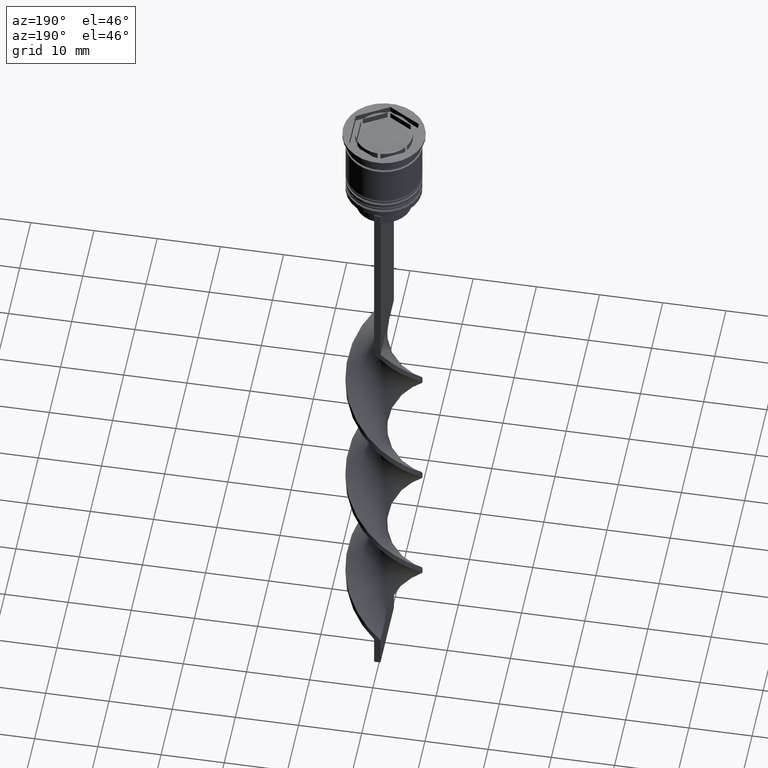
[diagram: clean part render]
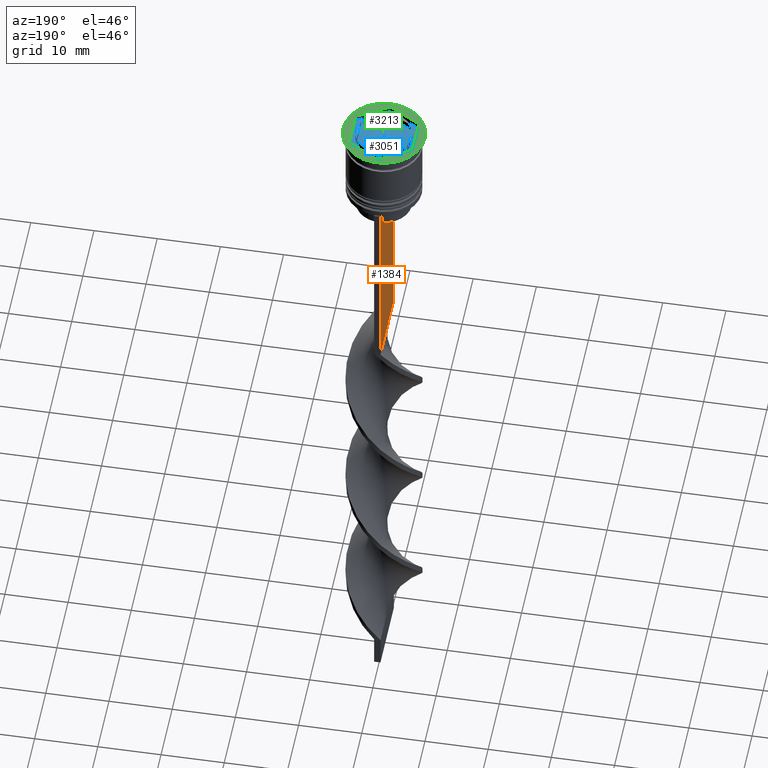
[diagram: same view with three faces highlighted in distinct colors, each labeled with its STEP entity id]
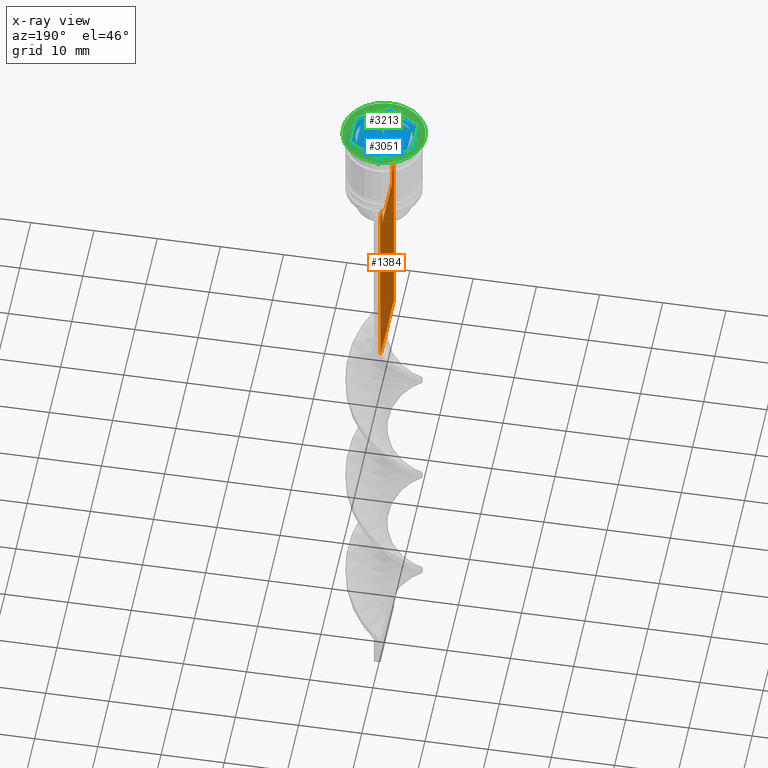
[diagram: x-ray of the same camera — body ghosted, the three highlighted faces saturated]
A machine part, auxiliary view with three faces highlighted in distinct colors.
The next image is the same camera in x-ray (body ghosted, the three faces saturated) — at least one of them is partly hidden behind the body in this view.
Their STEP definitions:

[orange] entity #1384 — the highlighted planar face has unit normal (-1, 0, 0).
#1 = ORIENTED_EDGE ( 'NONE', *, *, #142, .F. ) ;
#13 = CARTESIAN_POINT ( 'NONE',  ( -0.4999999999999997780, -4.371498598878878816, 0.000000000000000000 ) ) ;
#94 = ORIENTED_EDGE ( 'NONE', *, *, #2002, .F. ) ;
#100 = DIRECTION ( 'NONE',  ( 0.000000000000000000, 1.000000000000000000, 0.000000000000000000 ) ) ;
#139 = VECTOR ( 'NONE', #2410, 1000.000000000000000 ) ;
#142 = EDGE_CURVE ( 'NONE', #654, #655, #3115, .T. ) ;
#158 = CARTESIAN_POINT ( 'NONE',  ( -0.4999999999999997780, -4.706831372970964544, -12.66671687695981596 ) ) ;
#194 = ORIENTED_EDGE ( 'NONE', *, *, #849, .T. ) ;
#248 = CARTESIAN_POINT ( 'NONE',  ( -0.4999999999999997780, -4.371498598878878816, -13.00000000000000178 ) ) ;
#302 = CARTESIAN_POINT ( 'NONE',  ( -0.4999999999999997780, 4.371498598878878816, -13.00000000000000178 ) ) ;
#305 = VERTEX_POINT ( 'NONE', #2336 ) ;
#339 = LINE ( 'NONE', #1708, #1104 ) ;
#476 = VERTEX_POINT ( 'NONE', #3009 ) ;
#514 = CARTESIAN_POINT ( 'NONE',  ( -0.4999999999999997780, -6.000000000000000000, -12.50000000000000000 ) ) ;
#516 = VERTEX_POINT ( 'NONE', #1607 ) ;
#538 = CARTESIAN_POINT ( 'NONE',  ( -0.4999999999999997780, -6.000000000000000000, -12.50000000000000000 ) ) ;
#645 = DIRECTION ( 'NONE',  ( 0.000000000000000000, -1.000000000000000000, 0.000000000000000000 ) ) ;
#654 = VERTEX_POINT ( 'NONE', #248 ) ;
#655 = VERTEX_POINT ( 'NONE', #859 ) ;
#678 = LINE ( 'NONE', #2081, #1162 ) ;
#692 = ORIENTED_EDGE ( 'NONE', *, *, #2558, .F. ) ;
#767 = VECTOR ( 'NONE', #3162, 1000.000000000000000 ) ;
#849 = EDGE_CURVE ( 'NONE', #2516, #2413, #2773, .T. ) ;
#859 = CARTESIAN_POINT ( 'NONE',  ( -0.4999999999999997780, -4.874423042781576676, -12.50000000000000000 ) ) ;
#871 = LINE ( 'NONE', #1976, #1457 ) ;
#966 = VERTEX_POINT ( 'NONE', #1136 ) ;
#975 = LINE ( 'NONE', #3513, #139 ) ;
#1094 = ORIENTED_EDGE ( 'NONE', *, *, #3518, .F. ) ;
#1099 = DIRECTION ( 'NONE',  ( 0.000000000000000000, 0.000000000000000000, 1.000000000000000000 ) ) ;
#1102 = CARTESIAN_POINT ( 'NONE',  ( -0.4999999999999997780, 4.706831415367290106, -12.66671683478478982 ) ) ;
#1104 = VECTOR ( 'NONE', #2619, 1000.000000000000000 ) ;
#1115 = DIRECTION ( 'NONE',  ( -0.000000000000000000, -0.000000000000000000, 1.000000000000000000 ) ) ;
#1135 = DIRECTION ( 'NONE',  ( -1.000000000000000000, 0.000000000000000000, 0.000000000000000000 ) ) ;
#1136 = CARTESIAN_POINT ( 'NONE',  ( -0.4999999999999997780, -5.878775382679627626, -12.50000000000000000 ) ) ;
#1162 = VECTOR ( 'NONE', #100, 1000.000000000000000 ) ;
#1203 = CARTESIAN_POINT ( 'NONE',  ( -0.4999999999999997780, -4.874423042781576676, -12.50000000000000000 ) ) ;
#1343 = CARTESIAN_POINT ( 'NONE',  ( -0.4999999999999997780, 6.000000000000001776, -12.50000000000000000 ) ) ;
#1384 = ADVANCED_FACE ( 'NONE', ( #3593 ), #2533, .T. ) ;
#1457 = VECTOR ( 'NONE', #3098, 1000.000000000000000 ) ;
#1540 = EDGE_CURVE ( 'NONE', #655, #966, #1677, .T. ) ;
#1543 = EDGE_CURVE ( 'NONE', #2433, #2115, #871, .T. ) ;
#1607 = CARTESIAN_POINT ( 'NONE',  ( -0.4999999999999997780, -6.000000000000000000, -43.50000000000000000 ) ) ;
#1670 = EDGE_CURVE ( 'NONE', #2115, #654, #2250, .T. ) ;
#1677 = LINE ( 'NONE', #514, #1988 ) ;
#1708 = CARTESIAN_POINT ( 'NONE',  ( -0.4999999999999997780, -6.000000000000000000, -0.4584054212077061097 ) ) ;
#1714 = B_SPLINE_CURVE_WITH_KNOTS ( 'NONE', 3,
 ( #3025, #1102, #2225, #302 ),
 .UNSPECIFIED., .F., .F.,
 ( 4, 4 ),
 ( 0.008336552452178418518, 0.009045730124312837891 ),
 .UNSPECIFIED. ) ;
#1732 = CARTESIAN_POINT ( 'NONE',  ( -0.4999999999999997780, -6.000000000000000000, -12.50000000000000000 ) ) ;
#1844 = CARTESIAN_POINT ( 'NONE',  ( -0.4999999999999997780, 5.878775382679627626, -12.50000000000000000 ) ) ;
#1877 = CARTESIAN_POINT ( 'NONE',  ( -0.4999999999999997780, 4.371498598878878816, -15.50000000000000000 ) ) ;
#1895 = CARTESIAN_POINT ( 'NONE',  ( -0.4999999999999997780, 6.000000000000000888, -43.50000000000000000 ) ) ;
#1916 = CARTESIAN_POINT ( 'NONE',  ( -0.4999999999999997780, 6.000000000000000888, -0.4584054212077061097 ) ) ;
#1922 = CARTESIAN_POINT ( 'NONE',  ( -0.4999999999999997780, -6.000000000000000000, -0.4584054212077061097 ) ) ;
#1958 = DIRECTION ( 'NONE',  ( 0.000000000000000000, -1.000000000000000000, 0.000000000000000000 ) ) ;
#1968 = ORIENTED_EDGE ( 'NONE', *, *, #1543, .F. ) ;
#1976 = CARTESIAN_POINT ( 'NONE',  ( -0.4999999999999997780, 4.399999999999999467, -15.50000000000000000 ) ) ;
#1988 = VECTOR ( 'NONE', #2479, 1000.000000000000000 ) ;
#2002 = EDGE_CURVE ( 'NONE', #2516, #3022, #3130, .T. ) ;
#2062 = ORIENTED_EDGE ( 'NONE', *, *, #2849, .F. ) ;
#2064 = CARTESIAN_POINT ( 'NONE',  ( -0.4999999999999997780, 4.874423042781576676, -12.50000000000000000 ) ) ;
#2081 = CARTESIAN_POINT ( 'NONE',  ( -0.4999999999999997780, -6.000000000000000000, -43.50000000000000000 ) ) ;
#2115 = VERTEX_POINT ( 'NONE', #2606 ) ;
#2146 = VECTOR ( 'NONE', #1115, 1000.000000000000000 ) ;
#2170 = ORIENTED_EDGE ( 'NONE', *, *, #1670, .F. ) ;
#2194 = DIRECTION ( 'NONE',  ( 0.000000000000000000, 0.000000000000000000, -1.000000000000000000 ) ) ;
#2225 = CARTESIAN_POINT ( 'NONE',  ( -0.4999999999999997780, 4.539195634199897356, -12.83338923751318816 ) ) ;
#2250 = LINE ( 'NONE', #13, #2146 ) ;
#2335 = VECTOR ( 'NONE', #2194, 1000.000000000000000 ) ;
#2336 = CARTESIAN_POINT ( 'NONE',  ( -0.4999999999999997780, 4.371498598878878816, -13.00000000000000178 ) ) ;
#2410 = DIRECTION ( 'NONE',  ( 0.000000000000000000, -1.000000000000000000, 0.000000000000000000 ) ) ;
#2413 = VERTEX_POINT ( 'NONE', #1895 ) ;
#2433 = VERTEX_POINT ( 'NONE', #1877 ) ;
#2479 = DIRECTION ( 'NONE',  ( 0.000000000000000000, -1.000000000000000000, 0.000000000000000000 ) ) ;
#2513 = LINE ( 'NONE', #538, #3155 ) ;
#2516 = VERTEX_POINT ( 'NONE', #1343 ) ;
#2533 = PLANE ( 'NONE',  #2924 ) ;
#2557 = LINE ( 'NONE', #2829, #767 ) ;
#2558 = EDGE_CURVE ( 'NONE', #516, #2413, #678, .T. ) ;
#2584 = EDGE_CURVE ( 'NONE', #476, #516, #339, .T. ) ;
#2587 = EDGE_CURVE ( 'NONE', #305, #2433, #2557, .T. ) ;
#2592 = VERTEX_POINT ( 'NONE', #2064 ) ;
#2606 = CARTESIAN_POINT ( 'NONE',  ( -0.4999999999999997780, -4.371498598878878816, -15.50000000000000000 ) ) ;
#2619 = DIRECTION ( 'NONE',  ( 0.000000000000000000, 0.000000000000000000, -1.000000000000000000 ) ) ;
#2640 = EDGE_LOOP ( 'NONE', ( #2062, #3016, #94, #194, #692, #2952, #1094, #2732, #1, #2170, #1968, #3328 ) ) ;
#2732 = ORIENTED_EDGE ( 'NONE', *, *, #1540, .F. ) ;
#2773 = LINE ( 'NONE', #1916, #2335 ) ;
#2798 = VECTOR ( 'NONE', #645, 1000.000000000000000 ) ;
#2829 = CARTESIAN_POINT ( 'NONE',  ( -0.4999999999999997780, 4.371498598878878816, 0.000000000000000000 ) ) ;
#2849 = EDGE_CURVE ( 'NONE', #2592, #305, #1714, .T. ) ;
#2924 = AXIS2_PLACEMENT_3D ( 'NONE', #1922, #1135, #1099 ) ;
#2928 = CARTESIAN_POINT ( 'NONE',  ( -0.4999999999999997780, -4.371498598878878816, -13.00000000000000178 ) ) ;
#2946 = CARTESIAN_POINT ( 'NONE',  ( -0.4999999999999997780, -4.539195586926424220, -12.83338928448044136 ) ) ;
#2952 = ORIENTED_EDGE ( 'NONE', *, *, #2584, .F. ) ;
#3009 = CARTESIAN_POINT ( 'NONE',  ( -0.4999999999999997780, -6.000000000000000000, -12.50000000000000000 ) ) ;
#3016 = ORIENTED_EDGE ( 'NONE', *, *, #3205, .F. ) ;
#3022 = VERTEX_POINT ( 'NONE', #1844 ) ;
#3025 = CARTESIAN_POINT ( 'NONE',  ( -0.4999999999999997780, 4.874423042781576676, -12.50000000000000000 ) ) ;
#3098 = DIRECTION ( 'NONE',  ( 0.000000000000000000, -1.000000000000000000, 0.000000000000000000 ) ) ;
#3115 = B_SPLINE_CURVE_WITH_KNOTS ( 'NONE', 3,
 ( #2928, #2946, #158, #1203 ),
 .UNSPECIFIED., .F., .F.,
 ( 4, 4 ),
 ( 0.02089901220910806920, 0.02161421017310284978 ),
 .UNSPECIFIED. ) ;
#3130 = LINE ( 'NONE', #1732, #2798 ) ;
#3155 = VECTOR ( 'NONE', #1958, 1000.000000000000000 ) ;
#3162 = DIRECTION ( 'NONE',  ( 0.000000000000000000, 0.000000000000000000, -1.000000000000000000 ) ) ;
#3205 = EDGE_CURVE ( 'NONE', #3022, #2592, #2513, .T. ) ;
#3328 = ORIENTED_EDGE ( 'NONE', *, *, #2587, .F. ) ;
#3513 = CARTESIAN_POINT ( 'NONE',  ( -0.4999999999999997780, -6.000000000000000000, -12.50000000000000000 ) ) ;
#3518 = EDGE_CURVE ( 'NONE', #966, #476, #975, .T. ) ;
#3593 = FACE_OUTER_BOUND ( 'NONE', #2640, .T. ) ;

[blue] entity #3051 — the highlighted planar face has unit normal (0, 0, 1).
#14 = ORIENTED_EDGE ( 'NONE', *, *, #1902, .F. ) ;
#20 = DIRECTION ( 'NONE',  ( 1.000000000000000000, 0.000000000000000000, 0.000000000000000000 ) ) ;
#40 = ORIENTED_EDGE ( 'NONE', *, *, #1214, .T. ) ;
#86 = CARTESIAN_POINT ( 'NONE',  ( -0.2146428928642867551, 4.494878021542170643, -1.000000000000000888 ) ) ;
#90 = CARTESIAN_POINT ( 'NONE',  ( 0.000000000000000000, 0.000000000000000000, -1.000000000000000000 ) ) ;
#105 = CARTESIAN_POINT ( 'NONE',  ( 0.000000000000000000, 5.773502691896257311, -1.000000000000000000 ) ) ;
#115 = ORIENTED_EDGE ( 'NONE', *, *, #2914, .T. ) ;
#136 = ORIENTED_EDGE ( 'NONE', *, *, #2371, .F. ) ;
#153 = EDGE_CURVE ( 'NONE', #1961, #2355, #762, .T. ) ;
#161 = CARTESIAN_POINT ( 'NONE',  ( 5.612359739892467248E-18, -5.773502691896257311, -1.000000000000000000 ) ) ;
#205 = LINE ( 'NONE', #161, #2221 ) ;
#214 = CARTESIAN_POINT ( 'NONE',  ( -0.2146428928642871992, -4.494878021542169755, -1.000000000000000888 ) ) ;
#216 = LINE ( 'NONE', #3528, #1622 ) ;
#220 = ORIENTED_EDGE ( 'NONE', *, *, #153, .F. ) ;
#230 = EDGE_CURVE ( 'NONE', #1711, #1298, #2569, .T. ) ;
#257 = DIRECTION ( 'NONE',  ( -0.8660254037844387076, -0.4999999999999998890, 0.000000000000000000 ) ) ;
#268 = CARTESIAN_POINT ( 'NONE',  ( 3.999999999999999112, -2.309401076758503812, -1.000000000000000888 ) ) ;
#276 = EDGE_LOOP ( 'NONE', ( #2155, #1277 ) ) ;
#292 = VECTOR ( 'NONE', #907, 1000.000000000000114 ) ;
#318 = LINE ( 'NONE', #3449, #2753 ) ;
#323 = DIRECTION ( 'NONE',  ( 0.000000000000000000, 0.000000000000000000, 1.000000000000000000 ) ) ;
#324 = DIRECTION ( 'NONE',  ( 0.8660254037844387076, -0.4999999999999998335, 0.000000000000000000 ) ) ;
#333 = ORIENTED_EDGE ( 'NONE', *, *, #610, .T. ) ;
#338 = EDGE_LOOP ( 'NONE', ( #732, #14 ) ) ;
#348 = DIRECTION ( 'NONE',  ( 0.000000000000000000, 0.000000000000000000, 1.000000000000000000 ) ) ;
#349 = AXIS2_PLACEMENT_3D ( 'NONE', #2443, #3561, #2740 ) ;
#382 = DIRECTION ( 'NONE',  ( -0.8660254037844384856, 0.5000000000000001110, 0.000000000000000000 ) ) ;
#452 = EDGE_CURVE ( 'NONE', #1298, #1711, #3050, .T. ) ;
#459 = AXIS2_PLACEMENT_3D ( 'NONE', #2085, #2320, #1256 ) ;
#460 = CARTESIAN_POINT ( 'NONE',  ( 0.2146428928642876155, -4.494878021542170643, -1.000000000000000888 ) ) ;
#467 = VECTOR ( 'NONE', #257, 1000.000000000000114 ) ;
#513 = FACE_BOUND ( 'NONE', #2299, .T. ) ;
#540 = VERTEX_POINT ( 'NONE', #214 ) ;
#544 = EDGE_CURVE ( 'NONE', #613, #1247, #1919, .T. ) ;
#576 = CARTESIAN_POINT ( 'NONE',  ( -5.000000000000000888, -2.886751345948129543, -1.000000000000000000 ) ) ;
#610 = EDGE_CURVE ( 'NONE', #1262, #2222, #205, .T. ) ;
#613 = VERTEX_POINT ( 'NONE', #1962 ) ;
#619 = LINE ( 'NONE', #3436, #2386 ) ;
#643 = AXIS2_PLACEMENT_3D ( 'NONE', #2478, #2196, #20 ) ;
#680 = CARTESIAN_POINT ( 'NONE',  ( -5.000000000000000888, 2.886751345948128655, -1.000000000000000000 ) ) ;
#702 = CIRCLE ( 'NONE', #2855, 4.500000000000000888 ) ;
#703 = CARTESIAN_POINT ( 'NONE',  ( 4.336808689942017736E-16, 4.618802153517006737, -1.000000000000000888 ) ) ;
#732 = ORIENTED_EDGE ( 'NONE', *, *, #544, .F. ) ;
#736 = EDGE_CURVE ( 'NONE', #2192, #3040, #3388, .T. ) ;
#754 = VERTEX_POINT ( 'NONE', #899 ) ;
#762 = CIRCLE ( 'NONE', #459, 4.500000000000000888 ) ;
#884 = CARTESIAN_POINT ( 'NONE',  ( 3.999999999999999112, -2.061552812808833846, -1.000000000000000888 ) ) ;
#899 = CARTESIAN_POINT ( 'NONE',  ( -4.000000000000000000, 2.061552812808831625, -1.000000000000000888 ) ) ;
#907 = DIRECTION ( 'NONE',  ( -0.8660254037844387076, 0.4999999999999997224, 0.000000000000000000 ) ) ;
#924 = ORIENTED_EDGE ( 'NONE', *, *, #1315, .T. ) ;
#1027 = VERTEX_POINT ( 'NONE', #1665 ) ;
#1046 = CARTESIAN_POINT ( 'NONE',  ( 0.000000000000000000, 0.000000000000000000, -1.000000000000000000 ) ) ;
#1052 = CIRCLE ( 'NONE', #643, 4.500000000000000888 ) ;
#1107 = DIRECTION ( 'NONE',  ( -1.877893248421448296E-16, -1.000000000000000000, 0.000000000000000000 ) ) ;
#1113 = LINE ( 'NONE', #2769, #467 ) ;
#1144 = CARTESIAN_POINT ( 'NONE',  ( -3.785357107135713939, -2.433325208733338130, -1.000000000000000888 ) ) ;
#1172 = VECTOR ( 'NONE', #1809, 1000.000000000000114 ) ;
#1204 = CARTESIAN_POINT ( 'NONE',  ( 5.000000000000000000, -2.886751345948128655, -1.000000000000000000 ) ) ;
#1214 = EDGE_CURVE ( 'NONE', #1814, #1261, #1113, .T. ) ;
#1247 = VERTEX_POINT ( 'NONE', #3251 ) ;
#1256 = DIRECTION ( 'NONE',  ( 1.000000000000000000, 0.000000000000000000, 0.000000000000000000 ) ) ;
#1261 = VERTEX_POINT ( 'NONE', #680 ) ;
#1262 = VERTEX_POINT ( 'NONE', #2083 ) ;
#1277 = ORIENTED_EDGE ( 'NONE', *, *, #3459, .F. ) ;
#1298 = VERTEX_POINT ( 'NONE', #1932 ) ;
#1315 = EDGE_CURVE ( 'NONE', #1027, #1262, #1723, .T. ) ;
#1350 = FACE_OUTER_BOUND ( 'NONE', #3001, .T. ) ;
#1434 = DIRECTION ( 'NONE',  ( -0.8660254037844387076, -0.4999999999999998890, 0.000000000000000000 ) ) ;
#1453 = VECTOR ( 'NONE', #382, 1000.000000000000227 ) ;
#1494 = CARTESIAN_POINT ( 'NONE',  ( 0.000000000000000000, 0.000000000000000000, -1.000000000000000000 ) ) ;
#1504 = CARTESIAN_POINT ( 'NONE',  ( -4.500000000000000888, 0.000000000000000000, -1.000000000000000000 ) ) ;
#1533 = LINE ( 'NONE', #2092, #1627 ) ;
#1575 = DIRECTION ( 'NONE',  ( 1.000000000000000000, 0.000000000000000000, 0.000000000000000000 ) ) ;
#1619 = DIRECTION ( 'NONE',  ( 0.000000000000000000, 0.000000000000000000, 1.000000000000000000 ) ) ;
#1622 = VECTOR ( 'NONE', #2258, 1000.000000000000000 ) ;
#1627 = VECTOR ( 'NONE', #2666, 1000.000000000000000 ) ;
#1646 = PLANE ( 'NONE',  #2220 ) ;
#1665 = CARTESIAN_POINT ( 'NONE',  ( -5.000000000000000888, -2.886751345948129543, -1.000000000000000000 ) ) ;
#1691 = DIRECTION ( 'NONE',  ( 1.000000000000000000, 0.000000000000000000, 0.000000000000000000 ) ) ;
#1698 = DIRECTION ( 'NONE',  ( 1.000000000000000000, 0.000000000000000000, 0.000000000000000000 ) ) ;
#1705 = EDGE_CURVE ( 'NONE', #754, #1961, #702, .T. ) ;
#1711 = VERTEX_POINT ( 'NONE', #884 ) ;
#1720 = VERTEX_POINT ( 'NONE', #86 ) ;
#1723 = LINE ( 'NONE', #576, #1807 ) ;
#1764 = CARTESIAN_POINT ( 'NONE',  ( -4.000000000000000000, -2.309401076758503368, -1.000000000000000888 ) ) ;
#1807 = VECTOR ( 'NONE', #3344, 1000.000000000000114 ) ;
#1809 = DIRECTION ( 'NONE',  ( 0.8660254037844385966, 0.5000000000000001110, -0.000000000000000000 ) ) ;
#1814 = VERTEX_POINT ( 'NONE', #105 ) ;
#1886 = FACE_BOUND ( 'NONE', #3397, .T. ) ;
#1894 = VERTEX_POINT ( 'NONE', #1144 ) ;
#1902 = EDGE_CURVE ( 'NONE', #1247, #613, #619, .T. ) ;
#1917 = ORIENTED_EDGE ( 'NONE', *, *, #452, .F. ) ;
#1919 = CIRCLE ( 'NONE', #349, 4.500000000000000888 ) ;
#1932 = CARTESIAN_POINT ( 'NONE',  ( 3.999999999999999112, 2.061552812808832513, -1.000000000000000888 ) ) ;
#1961 = VERTEX_POINT ( 'NONE', #1504 ) ;
#1962 = CARTESIAN_POINT ( 'NONE',  ( 3.785357107135712162, 2.433325208733341238, -1.000000000000000888 ) ) ;
#1986 = ORIENTED_EDGE ( 'NONE', *, *, #736, .F. ) ;
#2043 = LINE ( 'NONE', #1764, #1453 ) ;
#2083 = CARTESIAN_POINT ( 'NONE',  ( 5.612359739892467248E-18, -5.773502691896257311, -1.000000000000000000 ) ) ;
#2085 = CARTESIAN_POINT ( 'NONE',  ( 0.000000000000000000, 0.000000000000000000, -1.000000000000000000 ) ) ;
#2092 = CARTESIAN_POINT ( 'NONE',  ( -5.000000000000000888, 2.886751345948128655, -1.000000000000000000 ) ) ;
#2119 = EDGE_LOOP ( 'NONE', ( #2404, #1986 ) ) ;
#2155 = ORIENTED_EDGE ( 'NONE', *, *, #3299, .F. ) ;
#2192 = VERTEX_POINT ( 'NONE', #3464 ) ;
#2196 = DIRECTION ( 'NONE',  ( 0.000000000000000000, 0.000000000000000000, 1.000000000000000000 ) ) ;
#2204 = VERTEX_POINT ( 'NONE', #3238 ) ;
#2220 = AXIS2_PLACEMENT_3D ( 'NONE', #1046, #1619, #3004 ) ;
#2221 = VECTOR ( 'NONE', #2949, 1000.000000000000227 ) ;
#2222 = VERTEX_POINT ( 'NONE', #1204 ) ;
#2256 = DIRECTION ( 'NONE',  ( 0.000000000000000000, 1.000000000000000000, 0.000000000000000000 ) ) ;
#2258 = DIRECTION ( 'NONE',  ( 1.502314598737159278E-16, 1.000000000000000000, 0.000000000000000000 ) ) ;
#2299 = EDGE_LOOP ( 'NONE', ( #3220, #1917 ) ) ;
#2304 = DIRECTION ( 'NONE',  ( 0.000000000000000000, 0.000000000000000000, 1.000000000000000000 ) ) ;
#2320 = DIRECTION ( 'NONE',  ( 0.000000000000000000, 0.000000000000000000, 1.000000000000000000 ) ) ;
#2334 = CARTESIAN_POINT ( 'NONE',  ( 5.000000000000000888, 2.886751345948129543, -1.000000000000000000 ) ) ;
#2355 = VERTEX_POINT ( 'NONE', #2409 ) ;
#2360 = EDGE_CURVE ( 'NONE', #2222, #2722, #216, .T. ) ;
#2371 = EDGE_CURVE ( 'NONE', #1894, #540, #2387, .T. ) ;
#2386 = VECTOR ( 'NONE', #324, 1000.000000000000114 ) ;
#2387 = CIRCLE ( 'NONE', #2801, 4.500000000000000888 ) ;
#2404 = ORIENTED_EDGE ( 'NONE', *, *, #3122, .F. ) ;
#2409 = CARTESIAN_POINT ( 'NONE',  ( -4.000000000000000000, -2.061552812808831625, -1.000000000000000888 ) ) ;
#2416 = FACE_BOUND ( 'NONE', #338, .T. ) ;
#2419 = ORIENTED_EDGE ( 'NONE', *, *, #1705, .F. ) ;
#2428 = DIRECTION ( 'NONE',  ( 0.000000000000000000, 0.000000000000000000, 1.000000000000000000 ) ) ;
#2436 = FACE_BOUND ( 'NONE', #2119, .T. ) ;
#2443 = CARTESIAN_POINT ( 'NONE',  ( 0.000000000000000000, 0.000000000000000000, -1.000000000000000000 ) ) ;
#2452 = VECTOR ( 'NONE', #1434, 1000.000000000000114 ) ;
#2478 = CARTESIAN_POINT ( 'NONE',  ( 0.000000000000000000, 0.000000000000000000, -1.000000000000000000 ) ) ;
#2569 = CIRCLE ( 'NONE', #3267, 4.500000000000000888 ) ;
#2582 = CIRCLE ( 'NONE', #2694, 4.500000000000000888 ) ;
#2647 = LINE ( 'NONE', #703, #1172 ) ;
#2666 = DIRECTION ( 'NONE',  ( 0.000000000000000000, -1.000000000000000000, 0.000000000000000000 ) ) ;
#2694 = AXIS2_PLACEMENT_3D ( 'NONE', #90, #2304, #1698 ) ;
#2715 = EDGE_CURVE ( 'NONE', #540, #1894, #2043, .T. ) ;
#2722 = VERTEX_POINT ( 'NONE', #2334 ) ;
#2740 = DIRECTION ( 'NONE',  ( 1.000000000000000000, 0.000000000000000000, 0.000000000000000000 ) ) ;
#2753 = VECTOR ( 'NONE', #2256, 1000.000000000000000 ) ;
#2769 = CARTESIAN_POINT ( 'NONE',  ( 0.000000000000000000, 5.773502691896257311, -1.000000000000000000 ) ) ;
#2801 = AXIS2_PLACEMENT_3D ( 'NONE', #3360, #2428, #1575 ) ;
#2836 = CARTESIAN_POINT ( 'NONE',  ( -8.673617379884035472E-16, -4.618802153517006737, -1.000000000000000888 ) ) ;
#2855 = AXIS2_PLACEMENT_3D ( 'NONE', #1494, #348, #3382 ) ;
#2909 = EDGE_CURVE ( 'NONE', #2355, #754, #318, .T. ) ;
#2914 = EDGE_CURVE ( 'NONE', #2722, #1814, #3105, .T. ) ;
#2916 = EDGE_LOOP ( 'NONE', ( #2419, #3143, #220 ) ) ;
#2949 = DIRECTION ( 'NONE',  ( 0.8660254037844385966, 0.4999999999999998890, 0.000000000000000000 ) ) ;
#3000 = EDGE_CURVE ( 'NONE', #1261, #1027, #1533, .T. ) ;
#3001 = EDGE_LOOP ( 'NONE', ( #115, #40, #3565, #924, #333, #3254 ) ) ;
#3002 = ORIENTED_EDGE ( 'NONE', *, *, #2715, .F. ) ;
#3004 = DIRECTION ( 'NONE',  ( 1.000000000000000000, 0.000000000000000000, -0.000000000000000000 ) ) ;
#3040 = VERTEX_POINT ( 'NONE', #460 ) ;
#3042 = FACE_BOUND ( 'NONE', #276, .T. ) ;
#3050 = LINE ( 'NONE', #268, #3502 ) ;
#3051 = ADVANCED_FACE ( 'NONE', ( #2416, #513, #2436, #1886, #3550, #3042, #1350 ), #1646, .T. ) ;
#3086 = CARTESIAN_POINT ( 'NONE',  ( 0.000000000000000000, 0.000000000000000000, -1.000000000000000000 ) ) ;
#3105 = LINE ( 'NONE', #3371, #292 ) ;
#3122 = EDGE_CURVE ( 'NONE', #3040, #2192, #1052, .T. ) ;
#3143 = ORIENTED_EDGE ( 'NONE', *, *, #2909, .F. ) ;
#3220 = ORIENTED_EDGE ( 'NONE', *, *, #230, .F. ) ;
#3238 = CARTESIAN_POINT ( 'NONE',  ( -3.785357107135713939, 2.433325208733339018, -1.000000000000000888 ) ) ;
#3251 = CARTESIAN_POINT ( 'NONE',  ( 0.2146428928642876155, 4.494878021542170643, -1.000000000000000888 ) ) ;
#3254 = ORIENTED_EDGE ( 'NONE', *, *, #2360, .T. ) ;
#3267 = AXIS2_PLACEMENT_3D ( 'NONE', #3086, #323, #1691 ) ;
#3299 = EDGE_CURVE ( 'NONE', #1720, #2204, #2582, .T. ) ;
#3344 = DIRECTION ( 'NONE',  ( 0.8660254037844387076, -0.4999999999999997224, 0.000000000000000000 ) ) ;
#3360 = CARTESIAN_POINT ( 'NONE',  ( 0.000000000000000000, 0.000000000000000000, -1.000000000000000000 ) ) ;
#3371 = CARTESIAN_POINT ( 'NONE',  ( 5.000000000000000888, 2.886751345948129543, -1.000000000000000000 ) ) ;
#3382 = DIRECTION ( 'NONE',  ( 1.000000000000000000, 0.000000000000000000, 0.000000000000000000 ) ) ;
#3388 = LINE ( 'NONE', #2836, #2452 ) ;
#3397 = EDGE_LOOP ( 'NONE', ( #136, #3002 ) ) ;
#3436 = CARTESIAN_POINT ( 'NONE',  ( 4.000000000000000000, 2.309401076758504257, -1.000000000000000888 ) ) ;
#3449 = CARTESIAN_POINT ( 'NONE',  ( -4.000000000000000000, 2.309401076758502924, -1.000000000000000888 ) ) ;
#3459 = EDGE_CURVE ( 'NONE', #2204, #1720, #2647, .T. ) ;
#3464 = CARTESIAN_POINT ( 'NONE',  ( 3.785357107135712162, -2.433325208733341238, -1.000000000000000888 ) ) ;
#3502 = VECTOR ( 'NONE', #1107, 1000.000000000000000 ) ;
#3528 = CARTESIAN_POINT ( 'NONE',  ( 5.000000000000000000, -2.886751345948128655, -1.000000000000000000 ) ) ;
#3550 = FACE_BOUND ( 'NONE', #2916, .T. ) ;
#3561 = DIRECTION ( 'NONE',  ( 0.000000000000000000, 0.000000000000000000, 1.000000000000000000 ) ) ;
#3565 = ORIENTED_EDGE ( 'NONE', *, *, #3000, .T. ) ;

[green] entity #3213 — the highlighted planar face has unit normal (0, -0, 1).
#44 = DIRECTION ( 'NONE',  ( 1.502314598737159278E-16, 1.000000000000000000, 0.000000000000000000 ) ) ;
#59 = CARTESIAN_POINT ( 'NONE',  ( 5.612359739892467248E-18, -5.773502691896257311, 0.000000000000000000 ) ) ;
#117 = CARTESIAN_POINT ( 'NONE',  ( -5.000000000000000888, 2.886751345948128655, 0.000000000000000000 ) ) ;
#237 = EDGE_CURVE ( 'NONE', #2047, #2934, #1426, .T. ) ;
#263 = FACE_BOUND ( 'NONE', #3335, .T. ) ;
#303 = EDGE_CURVE ( 'NONE', #2883, #1116, #2507, .T. ) ;
#340 = DIRECTION ( 'NONE',  ( -0.000000000000000000, -0.000000000000000000, 1.000000000000000000 ) ) ;
#502 = EDGE_CURVE ( 'NONE', #2634, #3178, #1089, .T. ) ;
#503 = DIRECTION ( 'NONE',  ( 0.000000000000000000, -1.000000000000000000, 0.000000000000000000 ) ) ;
#527 = AXIS2_PLACEMENT_3D ( 'NONE', #2528, #3298, #1132 ) ;
#573 = CARTESIAN_POINT ( 'NONE',  ( -5.000000000000000888, -2.886751345948129543, 0.000000000000000000 ) ) ;
#633 = DIRECTION ( 'NONE',  ( 1.000000000000000000, 0.000000000000000000, 0.000000000000000000 ) ) ;
#641 = VECTOR ( 'NONE', #3110, 1000.000000000000227 ) ;
#695 = LINE ( 'NONE', #1252, #824 ) ;
#709 = VECTOR ( 'NONE', #2072, 1000.000000000000114 ) ;
#795 = EDGE_CURVE ( 'NONE', #2717, #2555, #3017, .T. ) ;
#824 = VECTOR ( 'NONE', #1183, 1000.000000000000114 ) ;
#836 = DIRECTION ( 'NONE',  ( 0.000000000000000000, -0.000000000000000000, 1.000000000000000000 ) ) ;
#866 = EDGE_CURVE ( 'NONE', #2555, #2634, #695, .T. ) ;
#934 = AXIS2_PLACEMENT_3D ( 'NONE', #2886, #340, #633 ) ;
#952 = CARTESIAN_POINT ( 'NONE',  ( 0.000000000000000000, 5.773502691896257311, 0.000000000000000000 ) ) ;
#1089 = LINE ( 'NONE', #2423, #1559 ) ;
#1116 = VERTEX_POINT ( 'NONE', #1548 ) ;
#1132 = DIRECTION ( 'NONE',  ( 1.000000000000000000, 0.000000000000000000, 0.000000000000000000 ) ) ;
#1183 = DIRECTION ( 'NONE',  ( -0.8660254037844387076, -0.4999999999999998890, 0.000000000000000000 ) ) ;
#1209 = CARTESIAN_POINT ( 'NONE',  ( 5.000000000000000000, -2.886751345948128655, 0.000000000000000000 ) ) ;
#1252 = CARTESIAN_POINT ( 'NONE',  ( 0.000000000000000000, 5.773502691896257311, 0.000000000000000000 ) ) ;
#1352 = EDGE_LOOP ( 'NONE', ( #3604, #2427 ) ) ;
#1368 = FACE_OUTER_BOUND ( 'NONE', #1352, .T. ) ;
#1391 = VECTOR ( 'NONE', #1596, 1000.000000000000114 ) ;
#1417 = DIRECTION ( 'NONE',  ( 1.000000000000000000, 0.000000000000000000, 0.000000000000000000 ) ) ;
#1426 = LINE ( 'NONE', #59, #641 ) ;
#1489 = CARTESIAN_POINT ( 'NONE',  ( 5.000000000000000888, 2.886751345948129543, 0.000000000000000000 ) ) ;
#1548 = CARTESIAN_POINT ( 'NONE',  ( 6.500000000000000000, 0.000000000000000000, 0.000000000000000000 ) ) ;
#1559 = VECTOR ( 'NONE', #503, 1000.000000000000000 ) ;
#1566 = AXIS2_PLACEMENT_3D ( 'NONE', #2494, #836, #1417 ) ;
#1596 = DIRECTION ( 'NONE',  ( -0.8660254037844387076, 0.4999999999999997224, 0.000000000000000000 ) ) ;
#1598 = EDGE_CURVE ( 'NONE', #1116, #2883, #2101, .T. ) ;
#1787 = LINE ( 'NONE', #2395, #709 ) ;
#1799 = VECTOR ( 'NONE', #44, 1000.000000000000000 ) ;
#1818 = EDGE_CURVE ( 'NONE', #2934, #2717, #2871, .T. ) ;
#1853 = ORIENTED_EDGE ( 'NONE', *, *, #237, .F. ) ;
#2047 = VERTEX_POINT ( 'NONE', #3075 ) ;
#2072 = DIRECTION ( 'NONE',  ( 0.8660254037844387076, -0.4999999999999997224, 0.000000000000000000 ) ) ;
#2101 = CIRCLE ( 'NONE', #527, 6.500000000000000000 ) ;
#2259 = EDGE_CURVE ( 'NONE', #3178, #2047, #1787, .T. ) ;
#2395 = CARTESIAN_POINT ( 'NONE',  ( -5.000000000000000888, -2.886751345948129543, 0.000000000000000000 ) ) ;
#2414 = CARTESIAN_POINT ( 'NONE',  ( 5.000000000000000888, 2.886751345948129543, 0.000000000000000000 ) ) ;
#2423 = CARTESIAN_POINT ( 'NONE',  ( -5.000000000000000888, 2.886751345948128655, 0.000000000000000000 ) ) ;
#2427 = ORIENTED_EDGE ( 'NONE', *, *, #303, .T. ) ;
#2494 = CARTESIAN_POINT ( 'NONE',  ( 0.000000000000000000, 0.000000000000000000, 0.000000000000000000 ) ) ;
#2507 = CIRCLE ( 'NONE', #934, 6.500000000000000000 ) ;
#2528 = CARTESIAN_POINT ( 'NONE',  ( 0.000000000000000000, 0.000000000000000000, 0.000000000000000000 ) ) ;
#2537 = CARTESIAN_POINT ( 'NONE',  ( -6.500000000000000000, 7.960204194457795477E-16, 0.000000000000000000 ) ) ;
#2555 = VERTEX_POINT ( 'NONE', #952 ) ;
#2631 = ORIENTED_EDGE ( 'NONE', *, *, #866, .F. ) ;
#2634 = VERTEX_POINT ( 'NONE', #117 ) ;
#2717 = VERTEX_POINT ( 'NONE', #1489 ) ;
#2719 = ORIENTED_EDGE ( 'NONE', *, *, #2259, .F. ) ;
#2815 = CARTESIAN_POINT ( 'NONE',  ( 5.000000000000000000, -2.886751345948128655, 0.000000000000000000 ) ) ;
#2871 = LINE ( 'NONE', #2815, #1799 ) ;
#2883 = VERTEX_POINT ( 'NONE', #2537 ) ;
#2886 = CARTESIAN_POINT ( 'NONE',  ( 0.000000000000000000, 0.000000000000000000, 0.000000000000000000 ) ) ;
#2934 = VERTEX_POINT ( 'NONE', #1209 ) ;
#3017 = LINE ( 'NONE', #2414, #1391 ) ;
#3075 = CARTESIAN_POINT ( 'NONE',  ( 5.612359739892467248E-18, -5.773502691896257311, 0.000000000000000000 ) ) ;
#3076 = PLANE ( 'NONE',  #1566 ) ;
#3110 = DIRECTION ( 'NONE',  ( 0.8660254037844385966, 0.4999999999999998890, 0.000000000000000000 ) ) ;
#3178 = VERTEX_POINT ( 'NONE', #573 ) ;
#3213 = ADVANCED_FACE ( 'NONE', ( #263, #1368 ), #3076, .T. ) ;
#3253 = ORIENTED_EDGE ( 'NONE', *, *, #795, .F. ) ;
#3298 = DIRECTION ( 'NONE',  ( -0.000000000000000000, -0.000000000000000000, 1.000000000000000000 ) ) ;
#3335 = EDGE_LOOP ( 'NONE', ( #3253, #3432, #1853, #2719, #3581, #2631 ) ) ;
#3432 = ORIENTED_EDGE ( 'NONE', *, *, #1818, .F. ) ;
#3581 = ORIENTED_EDGE ( 'NONE', *, *, #502, .F. ) ;
#3604 = ORIENTED_EDGE ( 'NONE', *, *, #1598, .T. ) ;